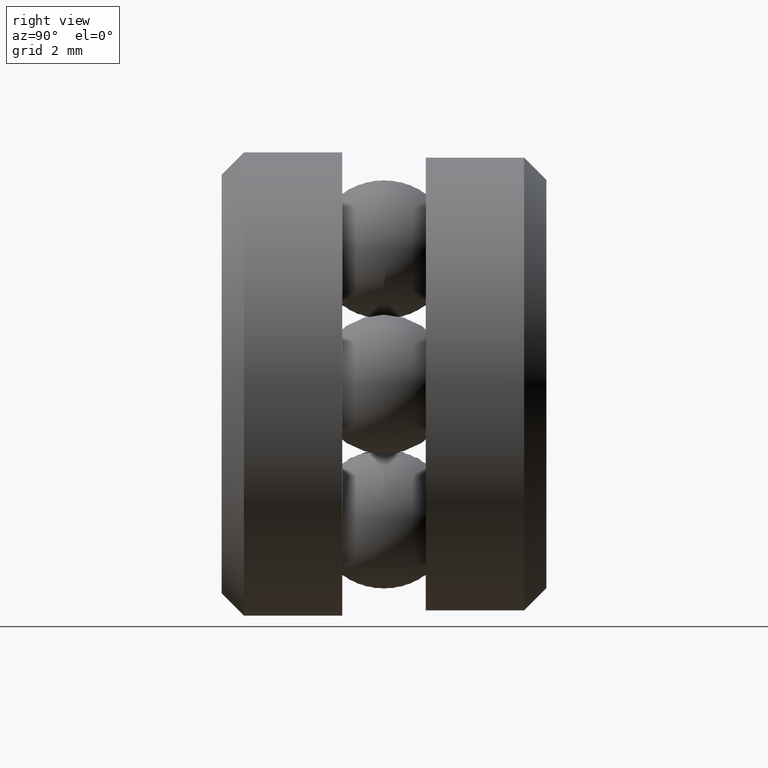
[diagram: clean part render]
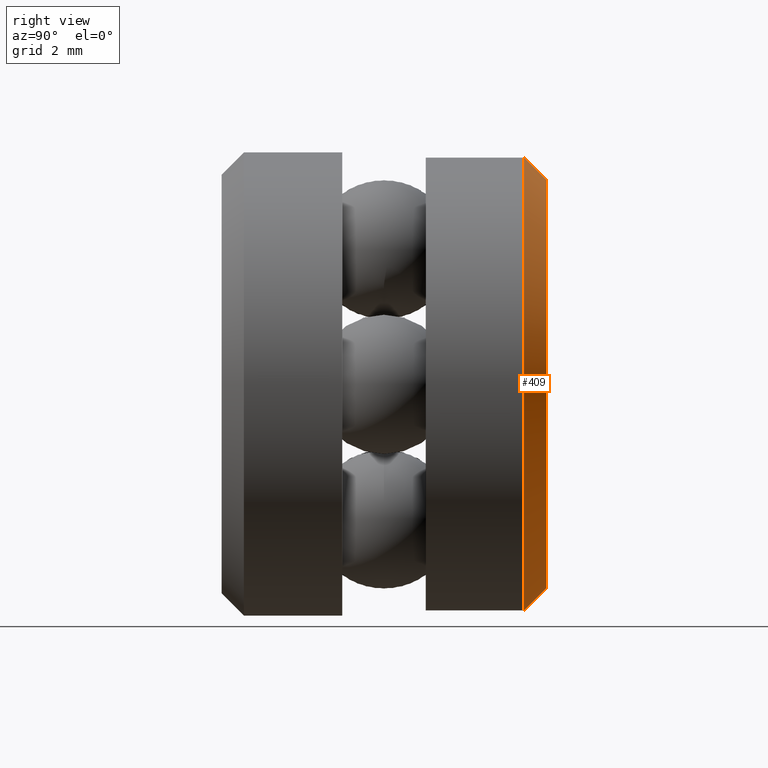
[diagram: same view with one face highlighted and labeled with its STEP entity id]
A machine part, right view. The second image highlights one B-rep face of the part: STEP entity #409.
In plain terms, the highlighted conical surface has half-angle 45 deg.
Its self-contained STEP definition (entity closure, byte-faithful):
#14 = AXIS2_PLACEMENT_3D ( 'NONE', #198, #193, #191 ) ;
#16 = AXIS2_PLACEMENT_3D ( 'NONE', #508, #171, #512 ) ;
#45 = CONICAL_SURFACE ( 'NONE', #16, 0.2755000000000000800, 0.7853981633974426200 ) ;
#67 = FACE_BOUND ( 'NONE', #250, .T. ) ;
#87 = CARTESIAN_POINT ( 'NONE',  ( 0.0000000000000000000, 0.4074999999999997000, 0.3055000000000000500 ) ) ;
#129 = EDGE_CURVE ( 'NONE', #157, #157, #344, .T. ) ;
#157 = VERTEX_POINT ( 'NONE', #263 ) ;
#171 = DIRECTION ( 'NONE',  ( 0.0000000000000000000, -1.000000000000000000, 0.0000000000000000000 ) ) ;
#191 = DIRECTION ( 'NONE',  ( 0.0000000000000000000, 0.0000000000000000000, 1.000000000000000000 ) ) ;
#193 = DIRECTION ( 'NONE',  ( -0.0000000000000000000, 1.000000000000000000, -0.0000000000000000000 ) ) ;
#198 = CARTESIAN_POINT ( 'NONE',  ( 0.0000000000000000000, 0.4375000000000000000, 0.0000000000000000000 ) ) ;
#244 = AXIS2_PLACEMENT_3D ( 'NONE', #393, #423, #403 ) ;
#250 = EDGE_LOOP ( 'NONE', ( #430 ) ) ;
#263 = CARTESIAN_POINT ( 'NONE',  ( 0.0000000000000000000, 0.4375000000000000000, 0.2755000000000000800 ) ) ;
#280 = EDGE_CURVE ( 'NONE', #354, #354, #417, .T. ) ;
#344 = CIRCLE ( 'NONE', #14, 0.2755000000000000800 ) ;
#354 = VERTEX_POINT ( 'NONE', #87 ) ;
#360 = EDGE_LOOP ( 'NONE', ( #518 ) ) ;
#393 = CARTESIAN_POINT ( 'NONE',  ( 0.0000000000000000000, 0.4074999999999997000, 0.0000000000000000000 ) ) ;
#403 = DIRECTION ( 'NONE',  ( 0.0000000000000000000, 0.0000000000000000000, 1.000000000000000000 ) ) ;
#409 = ADVANCED_FACE ( 'NONE', ( #411, #67 ), #45, .T. ) ;
#411 = FACE_OUTER_BOUND ( 'NONE', #360, .T. ) ;
#417 = CIRCLE ( 'NONE', #244, 0.3055000000000000500 ) ;
#423 = DIRECTION ( 'NONE',  ( -0.0000000000000000000, 1.000000000000000000, -0.0000000000000000000 ) ) ;
#430 = ORIENTED_EDGE ( 'NONE', *, *, #129, .F. ) ;
#508 = CARTESIAN_POINT ( 'NONE',  ( 0.0000000000000000000, 0.4375000000000000000, 0.0000000000000000000 ) ) ;
#512 = DIRECTION ( 'NONE',  ( 0.0000000000000000000, 0.0000000000000000000, -1.000000000000000000 ) ) ;
#518 = ORIENTED_EDGE ( 'NONE', *, *, #280, .T. ) ;